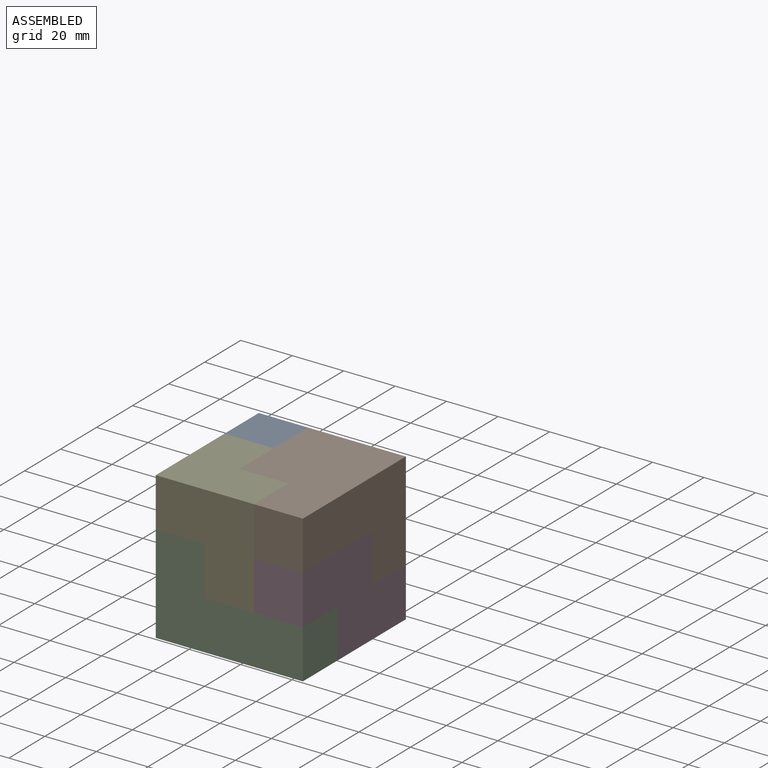
[diagram: assembled view]
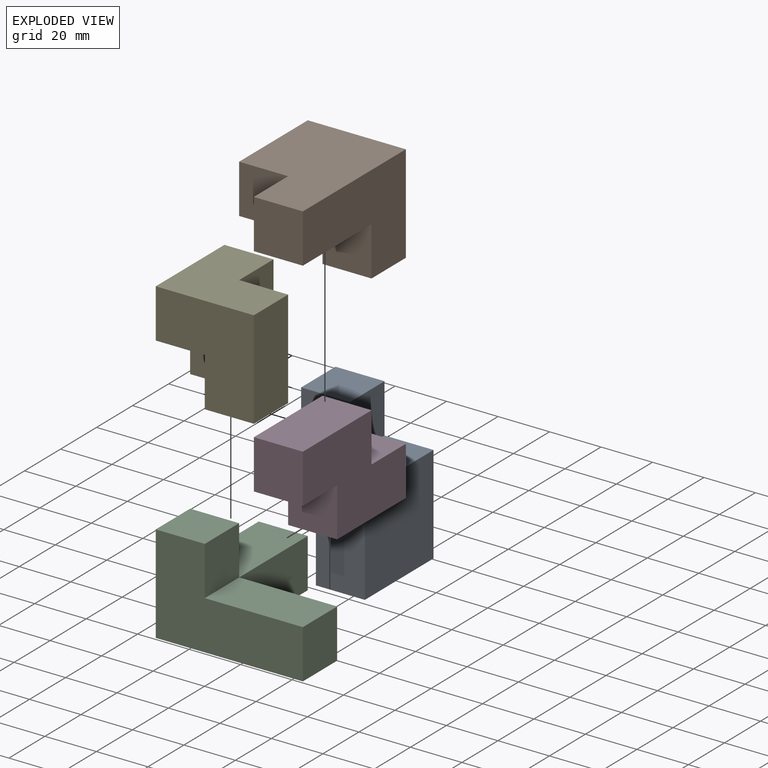
[diagram: exploded view]
GUIDED TOUR — MATED ASSEMBLY WITH SUBASSEMBLIES (Onshape document 07136e114ef27b51c66d2fa9, AutoMate assembly 07136e114ef27b51c66d2fa9_a3bc59fbf322028cf339dc3c_d794ad5f0589c1468adc88d8_default)

This assembly has 27 component occurrences arranged in 5 top-level units: 0 individual components plus 5 subassemblies (S0, S1, S2, S3, S4). The tour has two levels: first the top level, where each subassembly is treated as one rigid unit; then each subassembly is toured internally in its own section (nesting deeper than one subassembly level is flattened into its subassembly's section).

Components are labeled P0..P26 across the whole record; subassembly units are labeled S0..S4. A mate is a constraint between two units; its type names the relative motion it leaves free:
  FASTENED — locks the two components together rigidly (no relative motion).
Axis/direction vectors are unit vectors and 'through' points are millimeter coordinates, both in the assembly's world frame.

TOP-LEVEL MATES (between units; each subassembly's internal mates are listed in its own section)
  1. FASTENED "Fastened 1": S4 <-> S2, direction (0.000, 0.000, -1.000) through (-42.25, -92.13, -70.48) mm
  2. FASTENED "Fastened 3": S0 <-> S4, direction (0.000, -1.000, 0.000) through (-42.25, -63.56, -60.95) mm
  3. FASTENED "Fastened 2": S3 <-> S2, direction (0.000, 0.000, -1.000) through (-4.15, -92.13, -89.53) mm
  4. FASTENED "Fastened 4": S1 <-> S3, direction (0.000, 0.000, -1.000) through (-4.15, -54.03, -89.53) mm

TOP-LEVEL ASSEMBLY ORDER
  1. S2 — the base component [order verified]
  2. S4 [order verified]
  3. S1 [order verified]
  4. S0 [order verified]
  5. S3 [order verified]
Order-tag legend:
  [order verified] — this step's position reverses a verified removal order: the component was checked to insert without passing through the ones already placed.

Of the 27 component occurrences, 0 carry the full construction recipe — the FeatureScript program that regenerates the part's solid from scratch; the rest are supplied as boundary geometry only. Each toured unit is shown spotlighted twice — assembled, then exploded with a leader line back to its socket (green = recipe-attached component, orange = geometry-only, blue = subassembly unit; the rest desaturated gray).
NOTE — this tour is split across 3 documents so each fits a 32k-token context. This is document 1: the component sections continue in the remaining 2 documents, each repeating the header above.
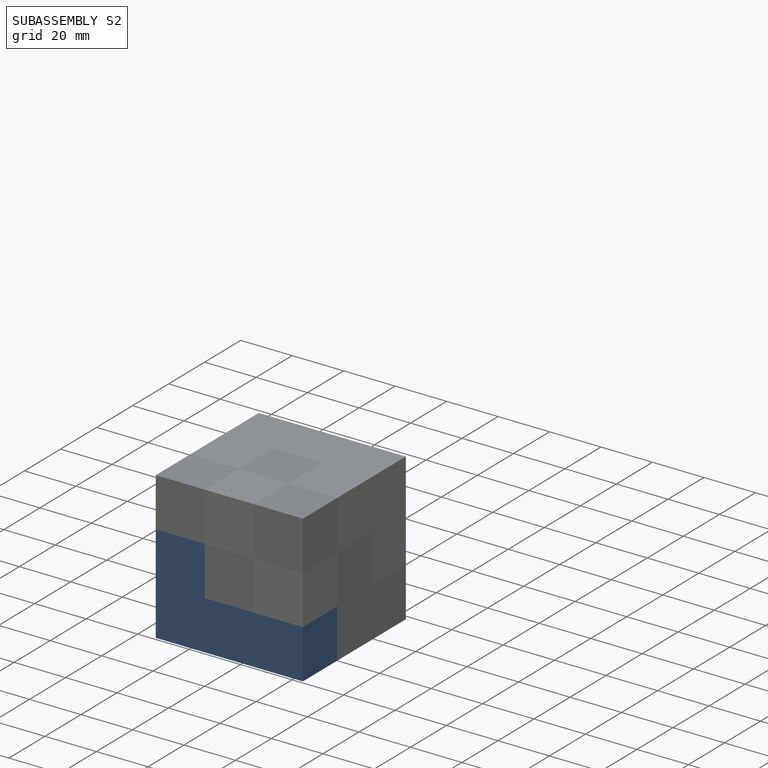
[diagram: subassembly S2 — assembled]
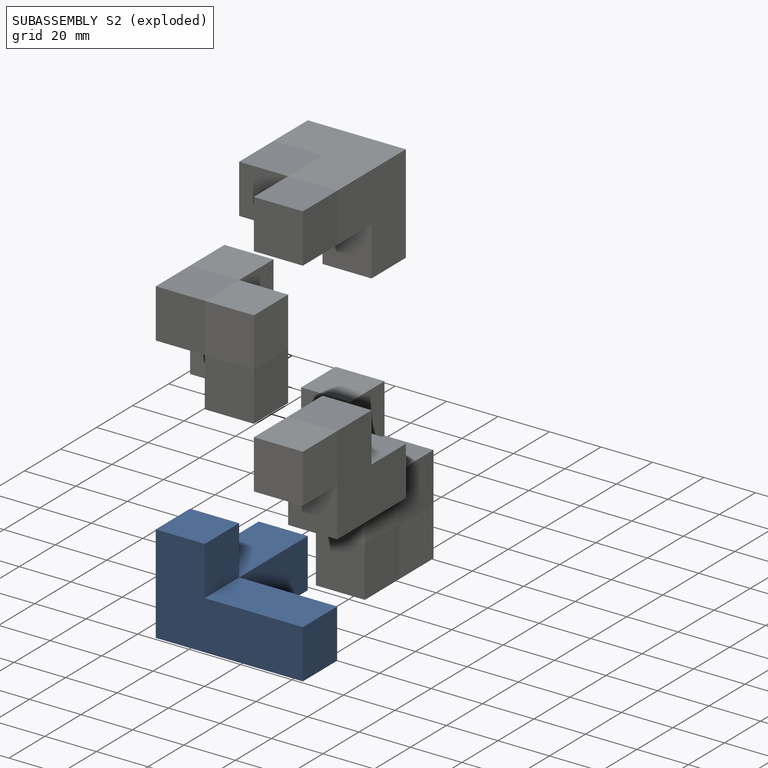
[diagram: subassembly S2 — exploded]
SUBASSEMBLY S2 — 6 components (P4, P6, P8, P11, P13, P17), of which 0 recipe-attached; toured below.
Held by: FASTENED mate "Fastened 1" to S4; FASTENED mate "Fastened 2" to S3.
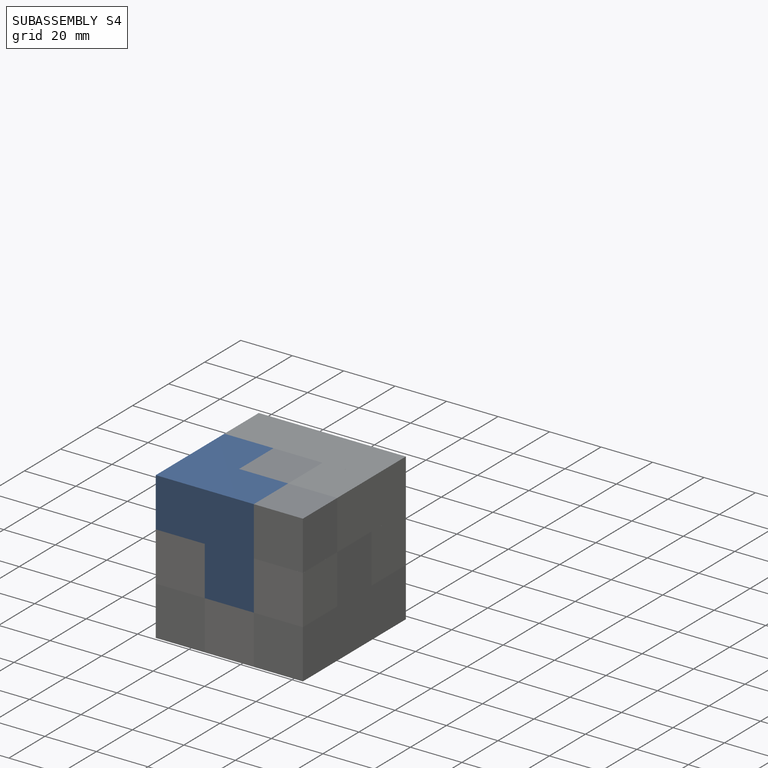
[diagram: subassembly S4 — assembled]
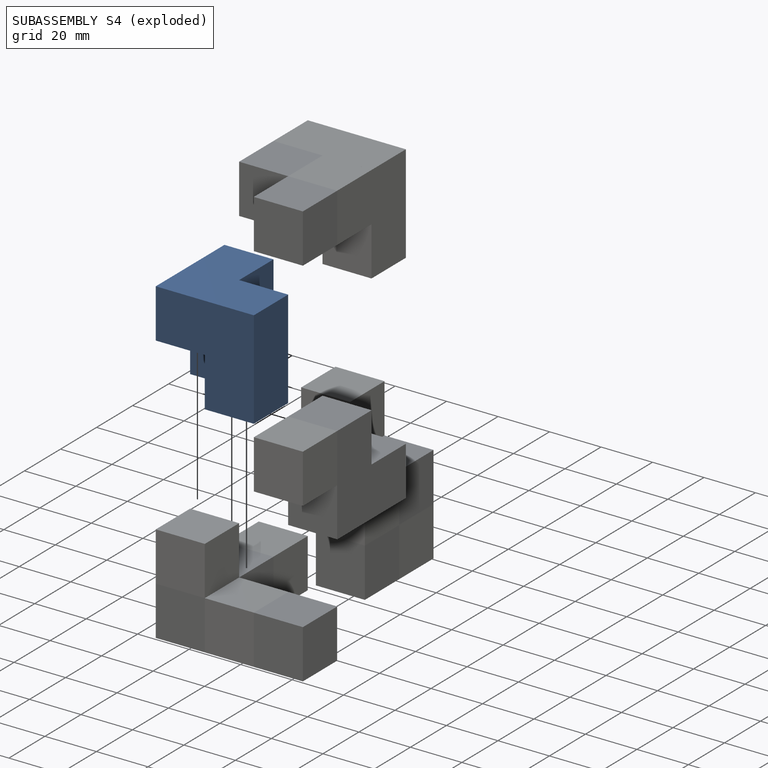
[diagram: subassembly S4 — exploded]
SUBASSEMBLY S4 — 5 components (P16, P19, P20, P21, P22), of which 0 recipe-attached; toured below.
Held by: FASTENED mate "Fastened 1" to S2; FASTENED mate "Fastened 3" to S0.
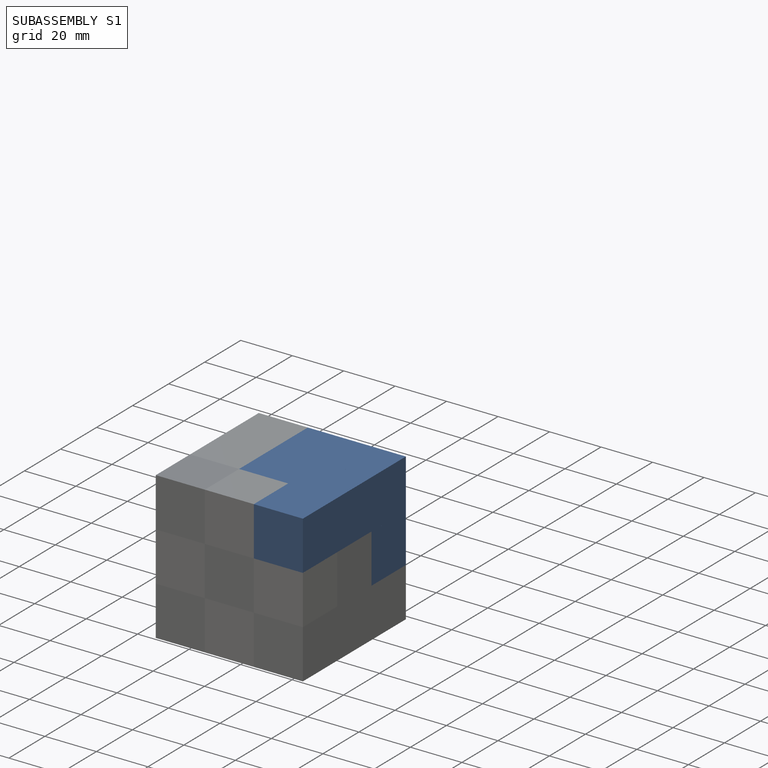
[diagram: subassembly S1 — assembled]
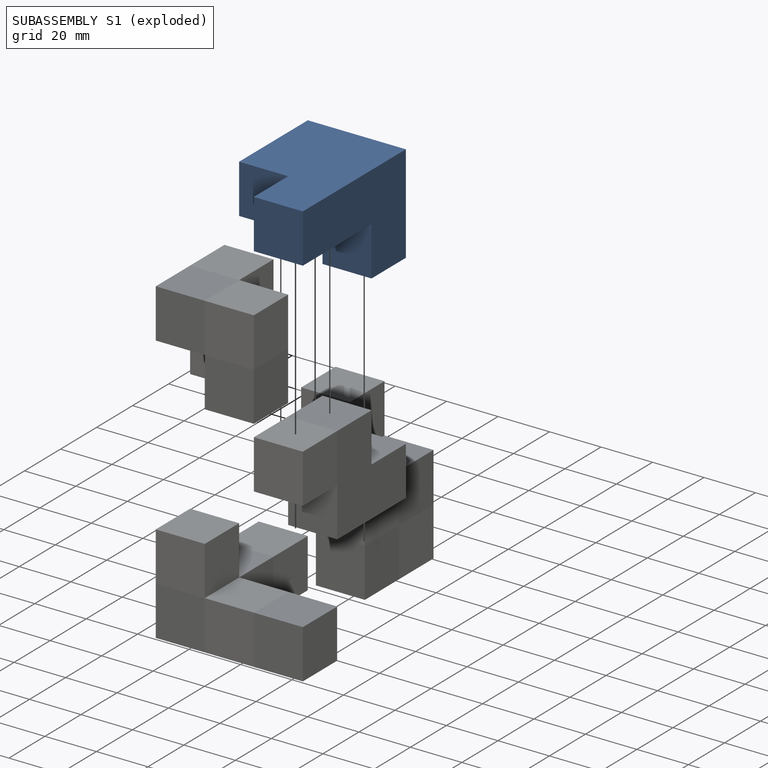
[diagram: subassembly S1 — exploded]
SUBASSEMBLY S1 — 6 components (P2, P3, P10, P15, P18, P26), of which 0 recipe-attached; toured below.
Held by: FASTENED mate "Fastened 4" to S3.
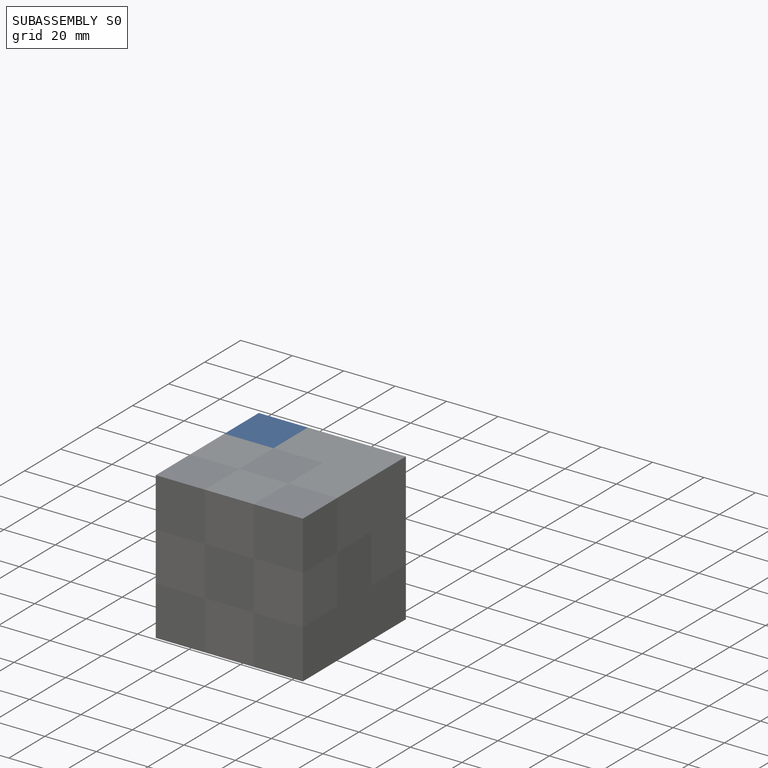
[diagram: subassembly S0 — assembled]
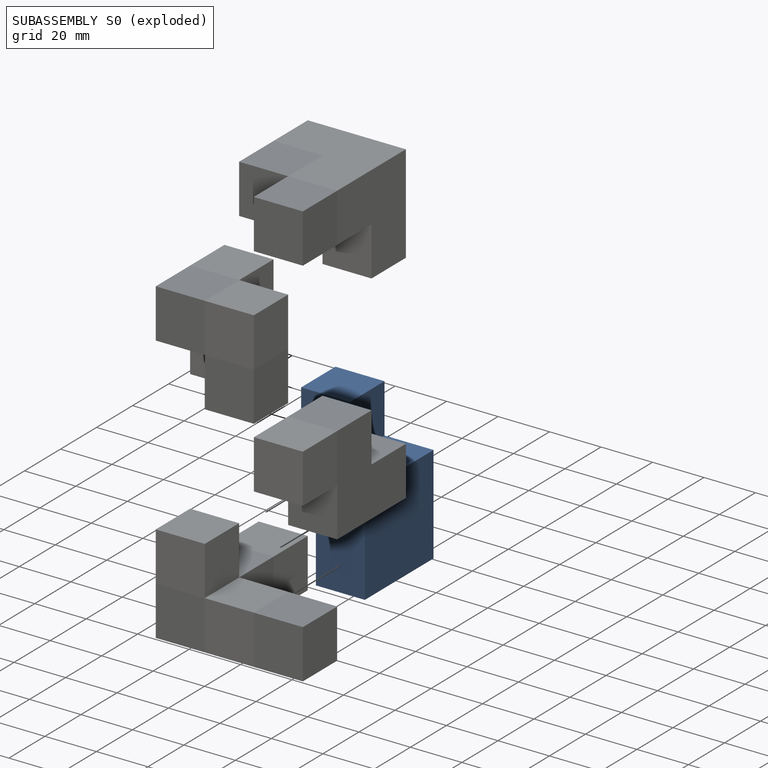
[diagram: subassembly S0 — exploded]
SUBASSEMBLY S0 — 6 components (P0, P1, P9, P12, P24, P25), of which 0 recipe-attached; toured below.
Held by: FASTENED mate "Fastened 3" to S4.
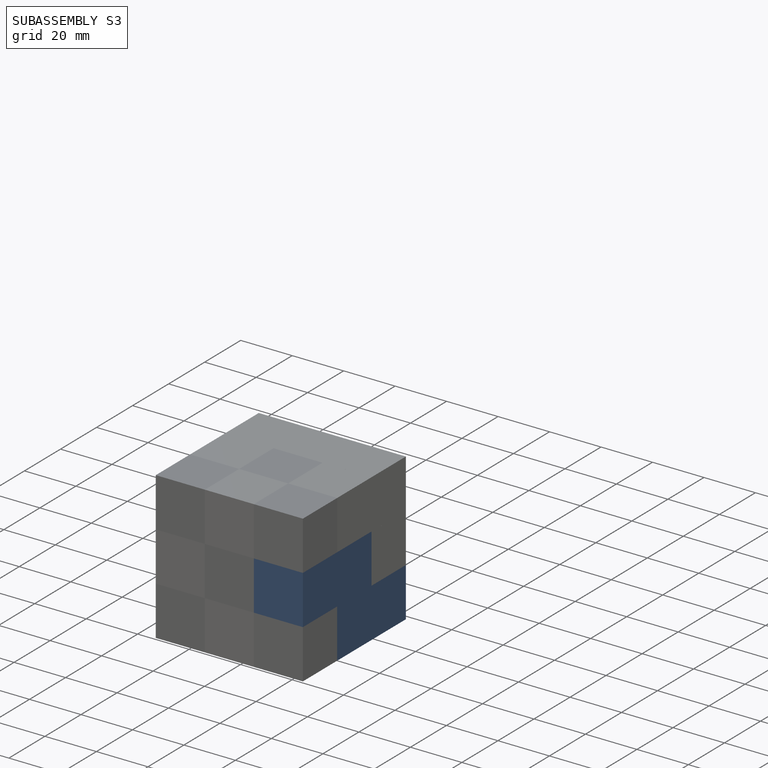
[diagram: subassembly S3 — assembled]
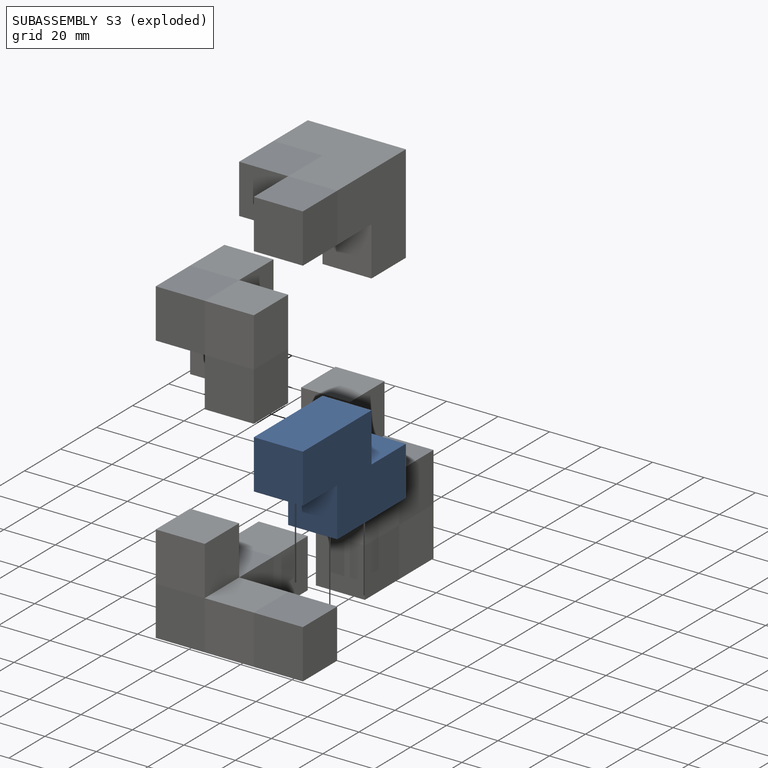
[diagram: subassembly S3 — exploded]
SUBASSEMBLY S3 — 4 components (P5, P7, P14, P23), of which 0 recipe-attached; toured below.
Held by: FASTENED mate "Fastened 2" to S2; FASTENED mate "Fastened 4" to S1.
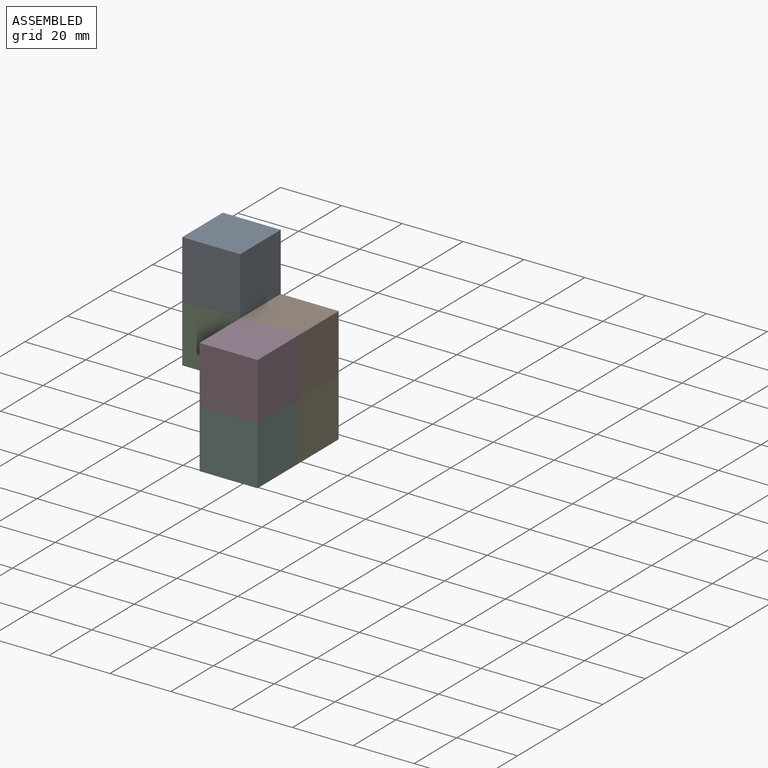
[diagram: subassembly S0 — assembled view]
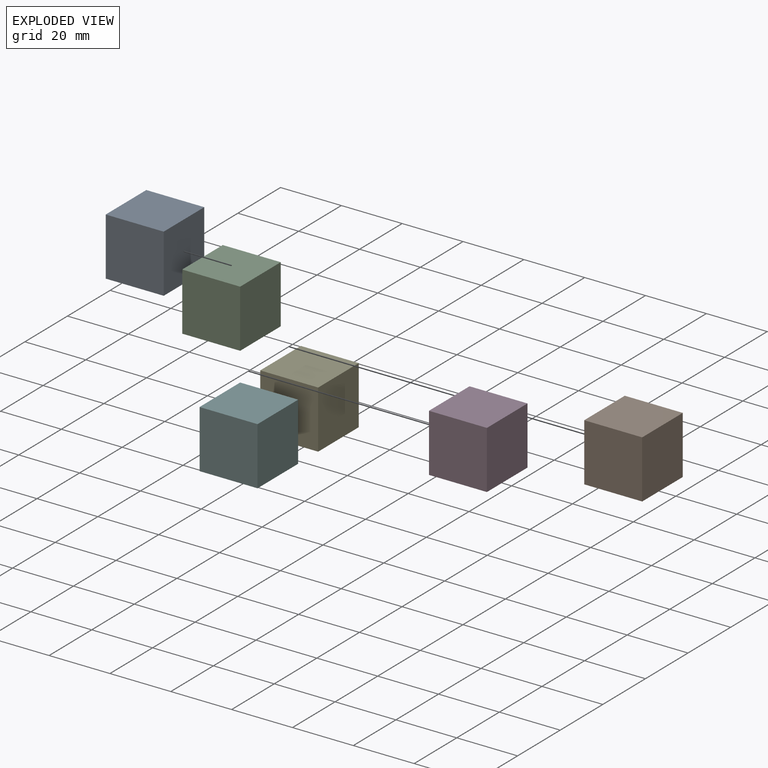
[diagram: subassembly S0 — exploded view]
SUBASSEMBLY S0 TOUR — 6 components, shown here in isolation at its own camera.
No internal mates are recorded for this subassembly; its components are held by their stored placements.

ASSEMBLY ORDER (within the subassembly)
  1. P25 — the base component [order verified]
  2. P24 [order verified]
  3. P12 [order verified]
  4. P1 [order verified]
  5. P9 [order verified]
  6. P0 [order verified]
Order-tag legend:
  [order verified] — this step's position reverses a verified removal order: the component was checked to insert without passing through the ones already placed.
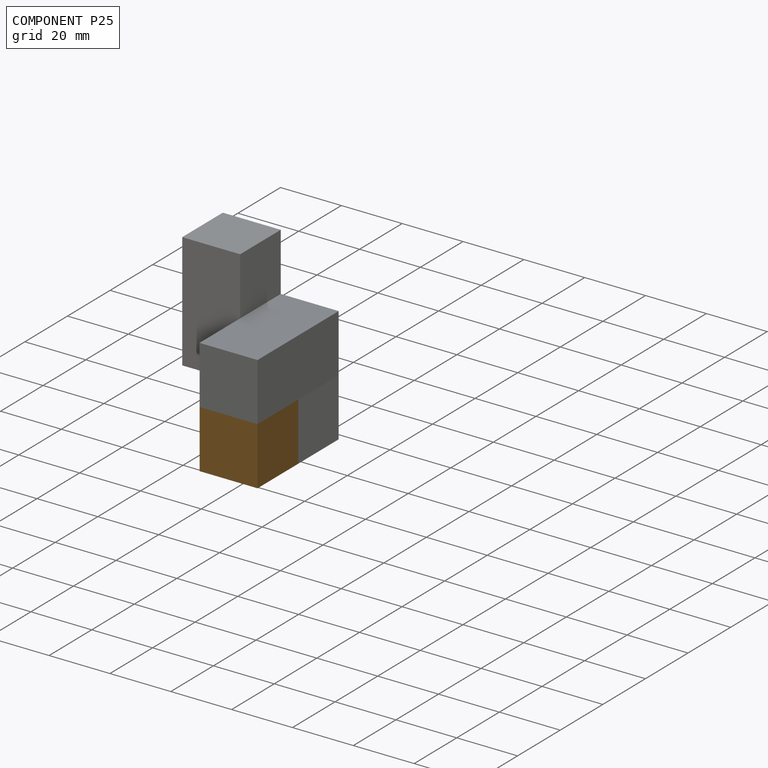
[diagram: component P25 — assembled]
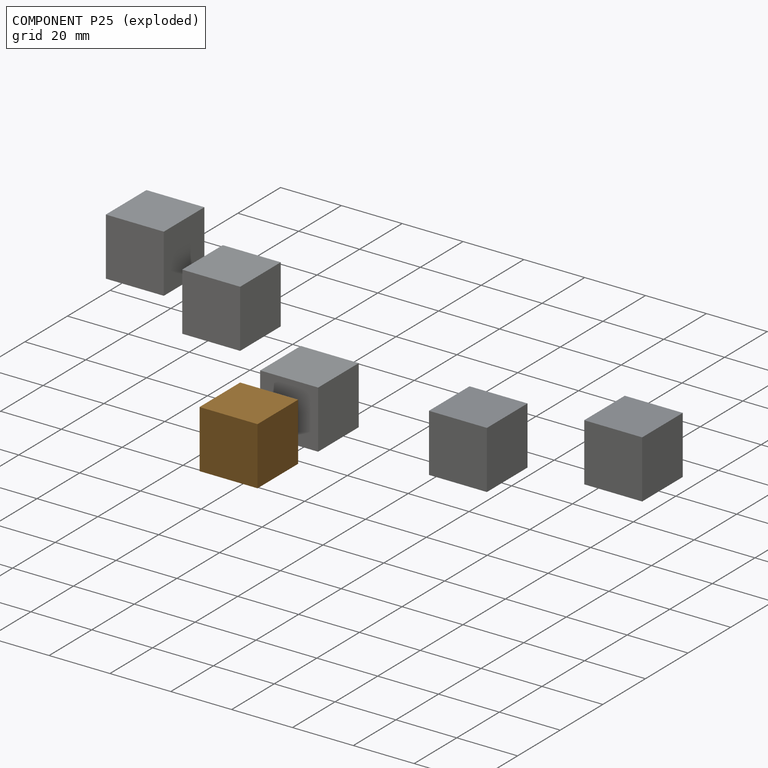
[diagram: component P25 — exploded]
COMPONENT P25 — geometry summary (no construction recipe available for this part):
  bounding box: 19.1 x 19.1 x 19.0 mm
  B-rep topology: 1 solid, 6 faces, 24 edges
  volume: 6913 mm^3 (100% of its bounding box)
  symmetry: 4-fold rotationally symmetric about the x axis; 4-fold rotationally symmetric about the y axis; 4-fold rotationally symmetric about the z axis; mirror-symmetric across its x mid-plane, y mid-plane, z mid-plane
Held by: no mates (free).
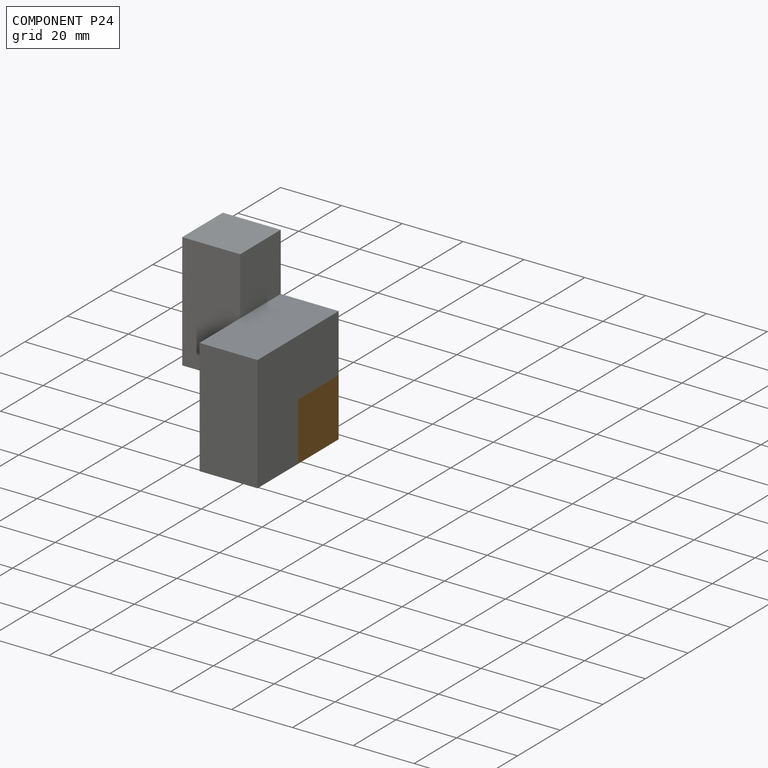
[diagram: component P24 — assembled]
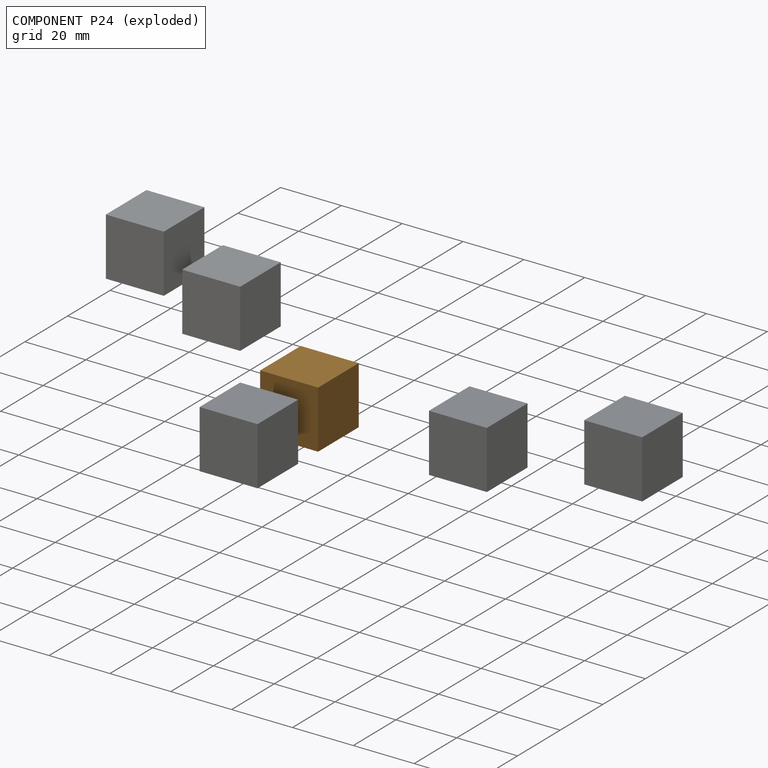
[diagram: component P24 — exploded]
COMPONENT P24 — geometry summary (no construction recipe available for this part):
  bounding box: 19.1 x 19.1 x 19.0 mm
  B-rep topology: 1 solid, 6 faces, 24 edges
  volume: 6913 mm^3 (100% of its bounding box)
  symmetry: 4-fold rotationally symmetric about the x axis; 4-fold rotationally symmetric about the y axis; 4-fold rotationally symmetric about the z axis; mirror-symmetric across its x mid-plane, y mid-plane, z mid-plane
Held by: no mates (free).
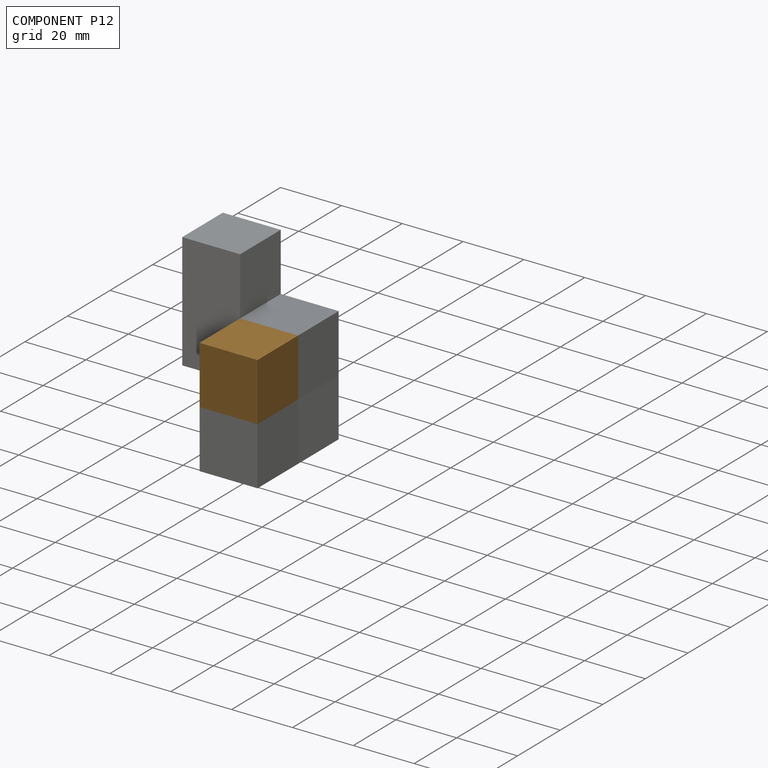
[diagram: component P12 — assembled]
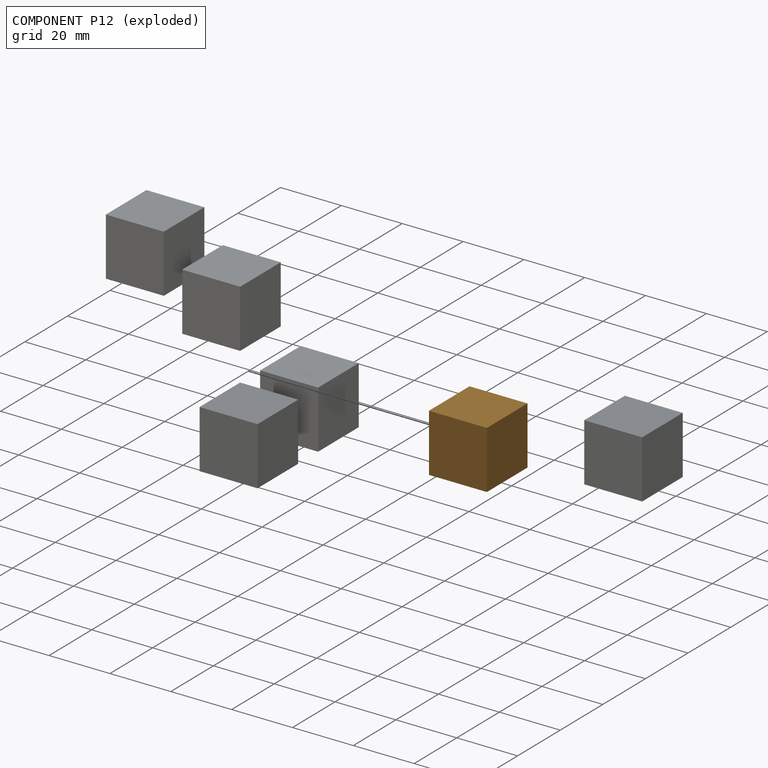
[diagram: component P12 — exploded]
COMPONENT P12 — geometry summary (no construction recipe available for this part):
  bounding box: 19.1 x 19.1 x 19.0 mm
  B-rep topology: 1 solid, 6 faces, 24 edges
  volume: 6913 mm^3 (100% of its bounding box)
  symmetry: 4-fold rotationally symmetric about the x axis; 4-fold rotationally symmetric about the y axis; 4-fold rotationally symmetric about the z axis; mirror-symmetric across its x mid-plane, y mid-plane, z mid-plane
Held by: no mates (free).
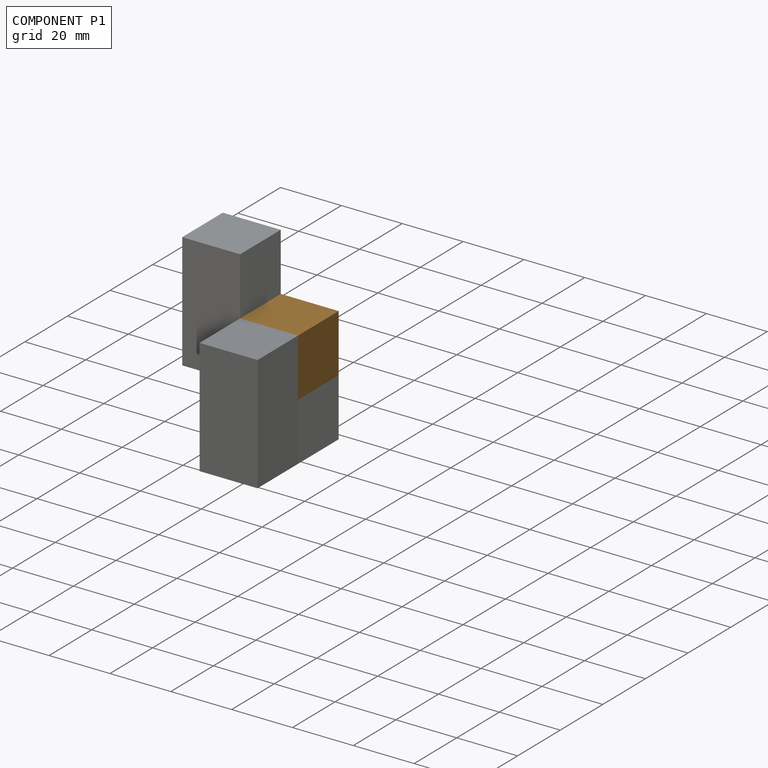
[diagram: component P1 — assembled]
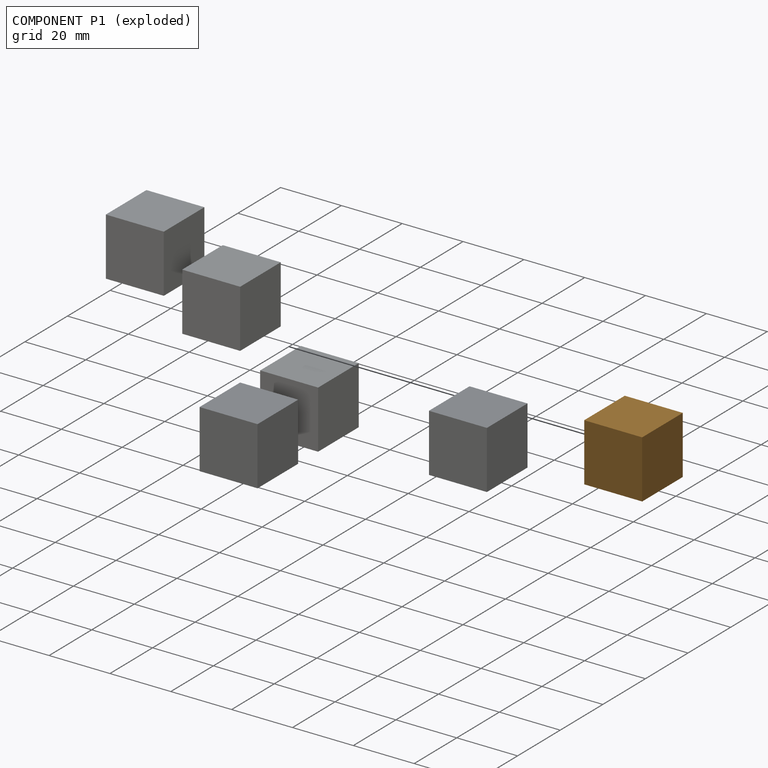
[diagram: component P1 — exploded]
COMPONENT P1 — geometry summary (no construction recipe available for this part):
  bounding box: 19.1 x 19.1 x 19.0 mm
  B-rep topology: 1 solid, 6 faces, 24 edges
  volume: 6913 mm^3 (100% of its bounding box)
  symmetry: 4-fold rotationally symmetric about the x axis; 4-fold rotationally symmetric about the y axis; 4-fold rotationally symmetric about the z axis; mirror-symmetric across its x mid-plane, y mid-plane, z mid-plane
Held by: no mates (free).
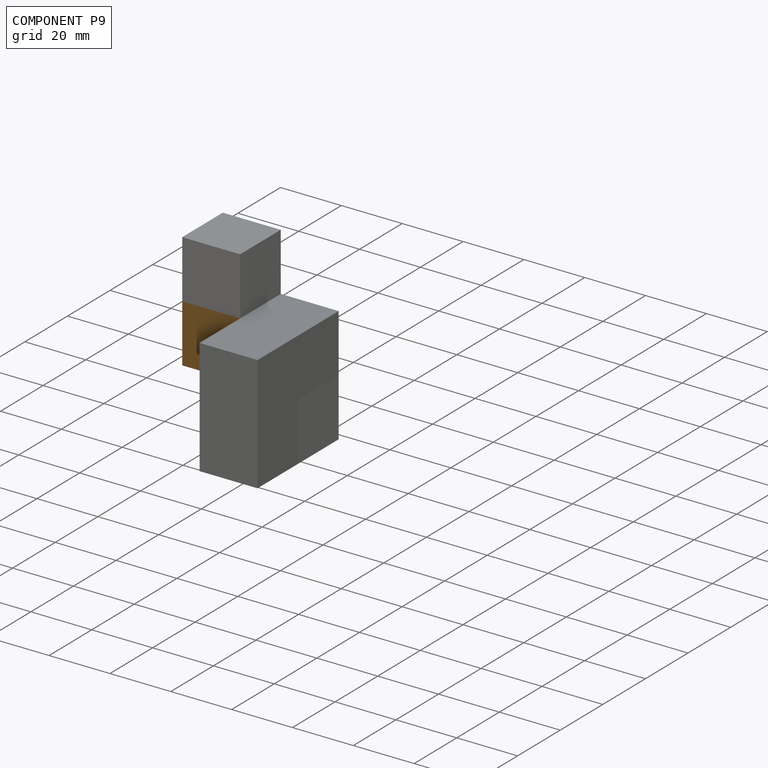
[diagram: component P9 — assembled]
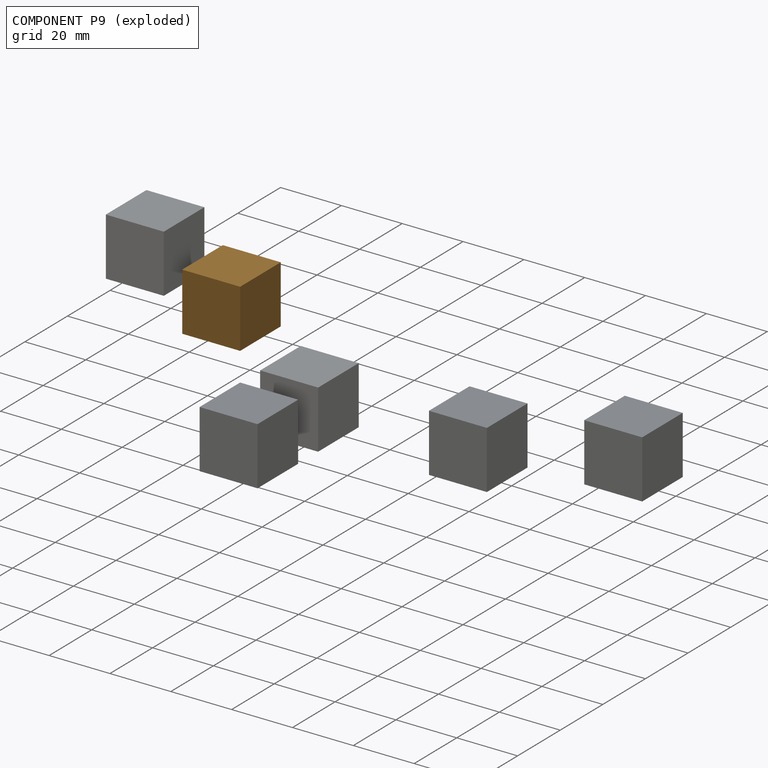
[diagram: component P9 — exploded]
COMPONENT P9 — geometry summary (no construction recipe available for this part):
  bounding box: 19.1 x 19.1 x 19.0 mm
  B-rep topology: 1 solid, 6 faces, 24 edges
  volume: 6913 mm^3 (100% of its bounding box)
  symmetry: 4-fold rotationally symmetric about the x axis; 4-fold rotationally symmetric about the y axis; 4-fold rotationally symmetric about the z axis; mirror-symmetric across its x mid-plane, y mid-plane, z mid-plane
Held by: no mates (free).
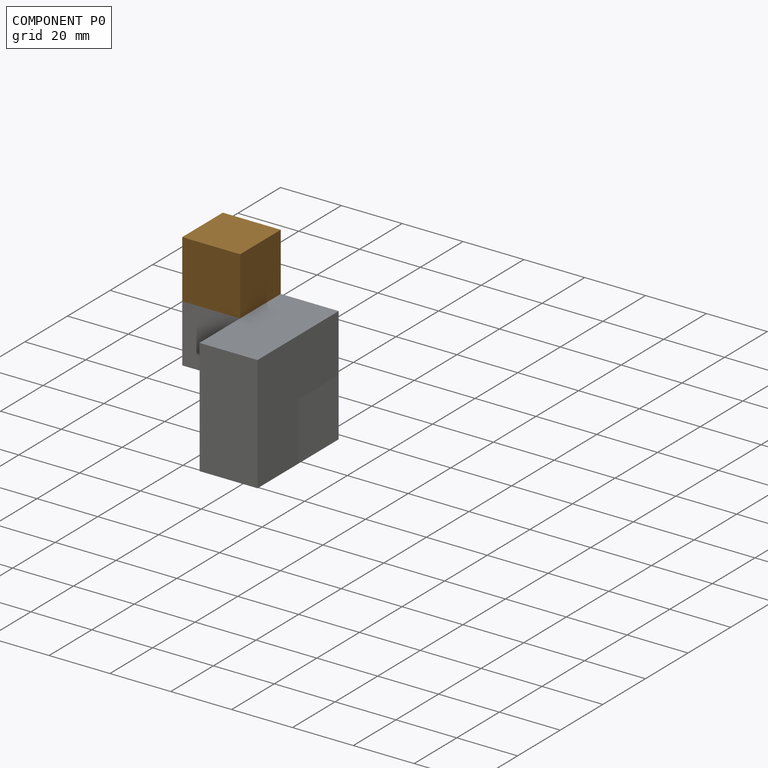
[diagram: component P0 — assembled]
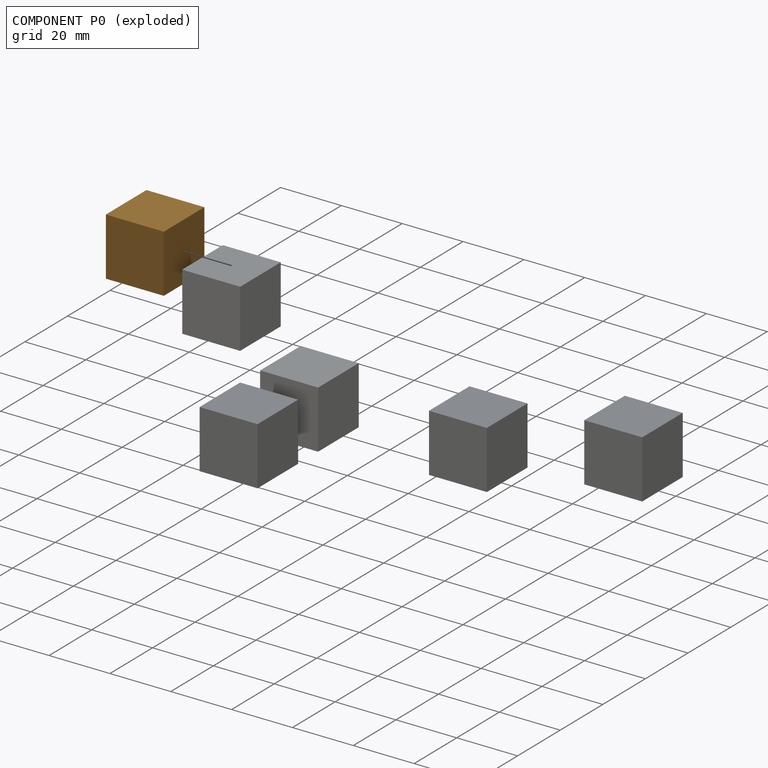
[diagram: component P0 — exploded]
COMPONENT P0 — geometry summary (no construction recipe available for this part):
  bounding box: 19.1 x 19.1 x 19.0 mm
  B-rep topology: 1 solid, 6 faces, 24 edges
  volume: 6913 mm^3 (100% of its bounding box)
  symmetry: 4-fold rotationally symmetric about the x axis; 4-fold rotationally symmetric about the y axis; 4-fold rotationally symmetric about the z axis; mirror-symmetric across its x mid-plane, y mid-plane, z mid-plane
Held by: no mates (free).
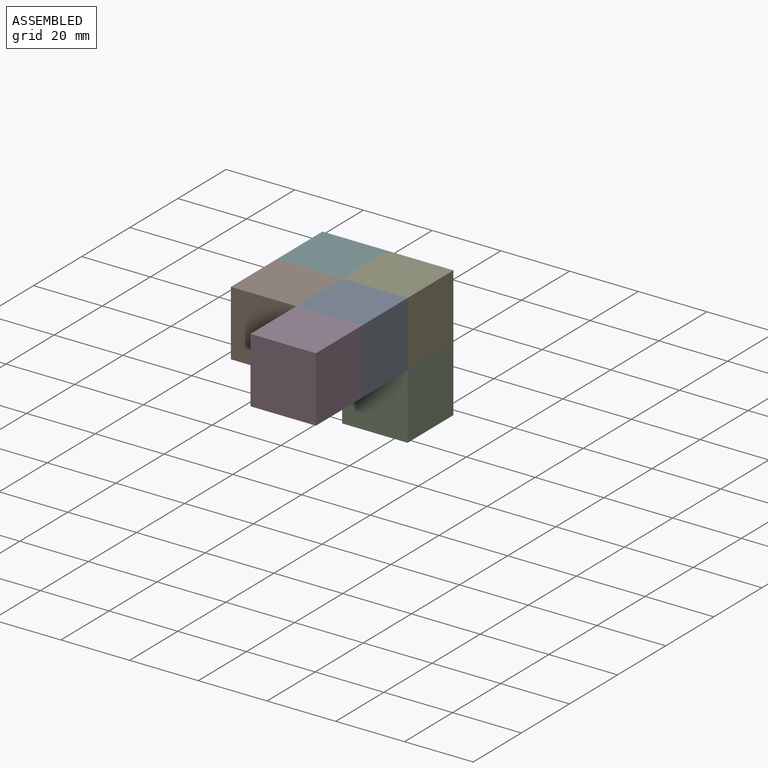
[diagram: subassembly S1 — assembled view]
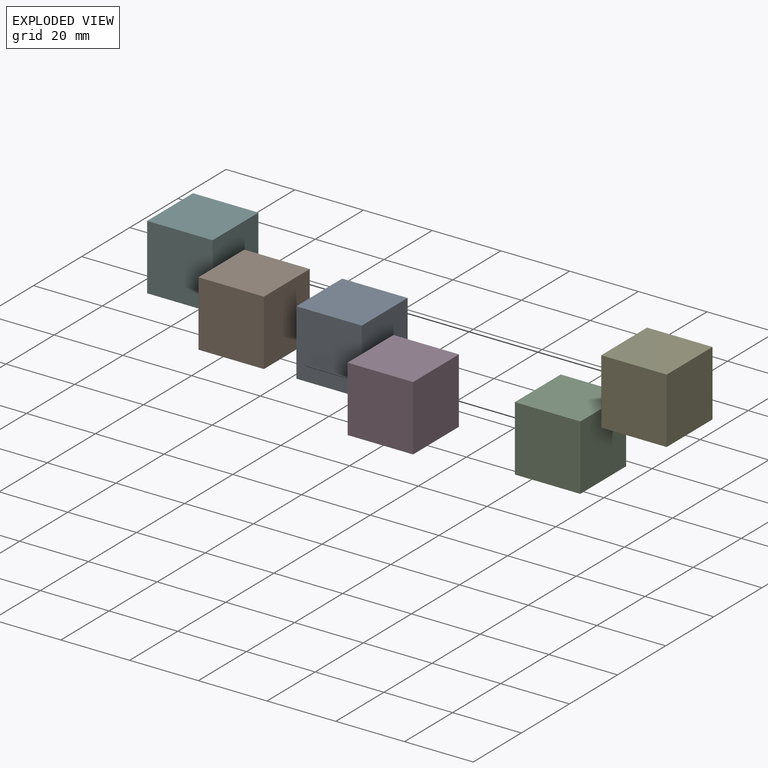
[diagram: subassembly S1 — exploded view]
SUBASSEMBLY S1 TOUR — 6 components, shown here in isolation at its own camera.
No internal mates are recorded for this subassembly; its components are held by their stored placements.

ASSEMBLY ORDER (within the subassembly)
  1. P2 — the base component [order heuristic]
  2. P3 — core [order heuristic]
  3. P18 — core [order heuristic]
  4. P26 — core [order heuristic]
  5. P15 [order verified]
  6. P10 [order verified]
Order-tag legend:
  [order verified] — this step's position reverses a verified removal order: the component was checked to insert without passing through the ones already placed.
  [order heuristic] — the first 4 components form the assembly's core: parts whose collision-free extraction could not be verified, listed in mate-graph order.
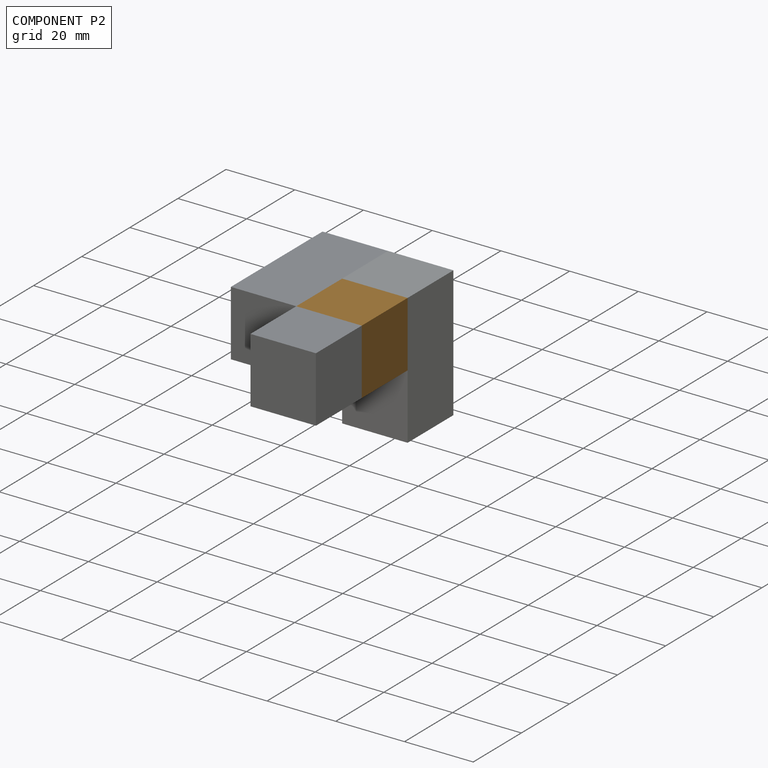
[diagram: component P2 — assembled]
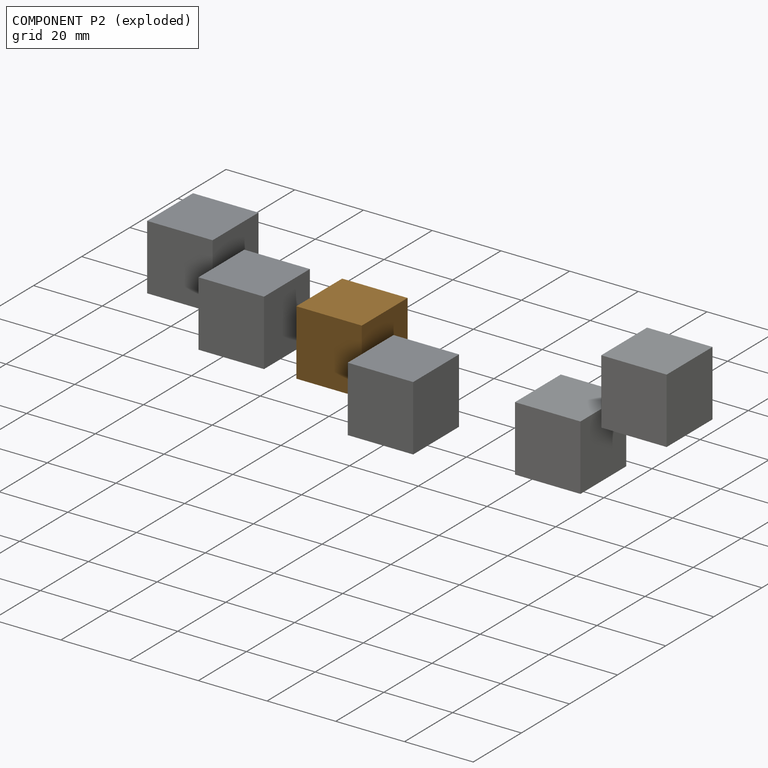
[diagram: component P2 — exploded]
COMPONENT P2 — geometry summary (no construction recipe available for this part):
  bounding box: 19.1 x 19.1 x 19.0 mm
  B-rep topology: 1 solid, 6 faces, 24 edges
  volume: 6913 mm^3 (100% of its bounding box)
  symmetry: 4-fold rotationally symmetric about the x axis; 4-fold rotationally symmetric about the y axis; 4-fold rotationally symmetric about the z axis; mirror-symmetric across its x mid-plane, y mid-plane, z mid-plane
Held by: no mates (free).
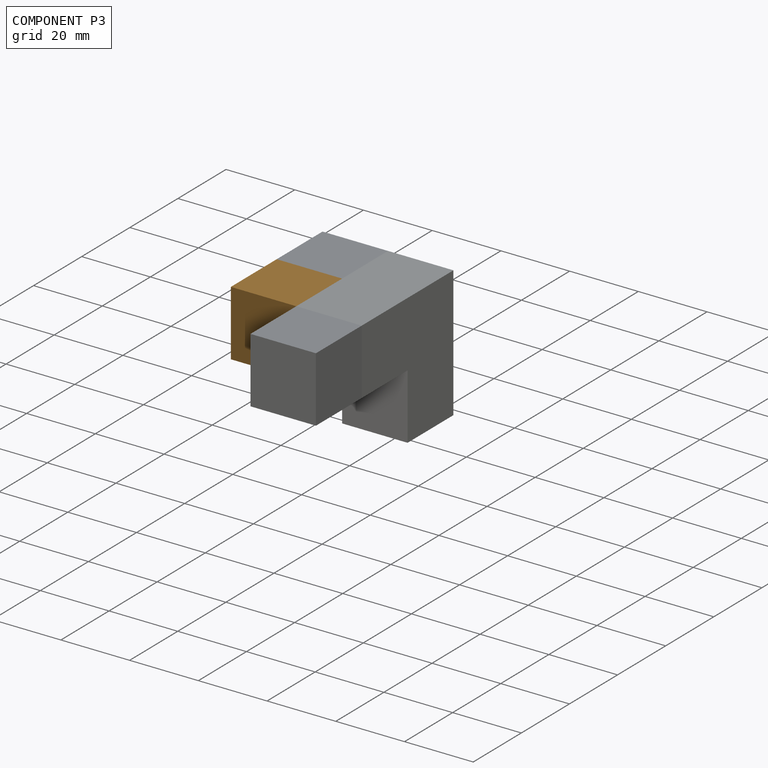
[diagram: component P3 — assembled]
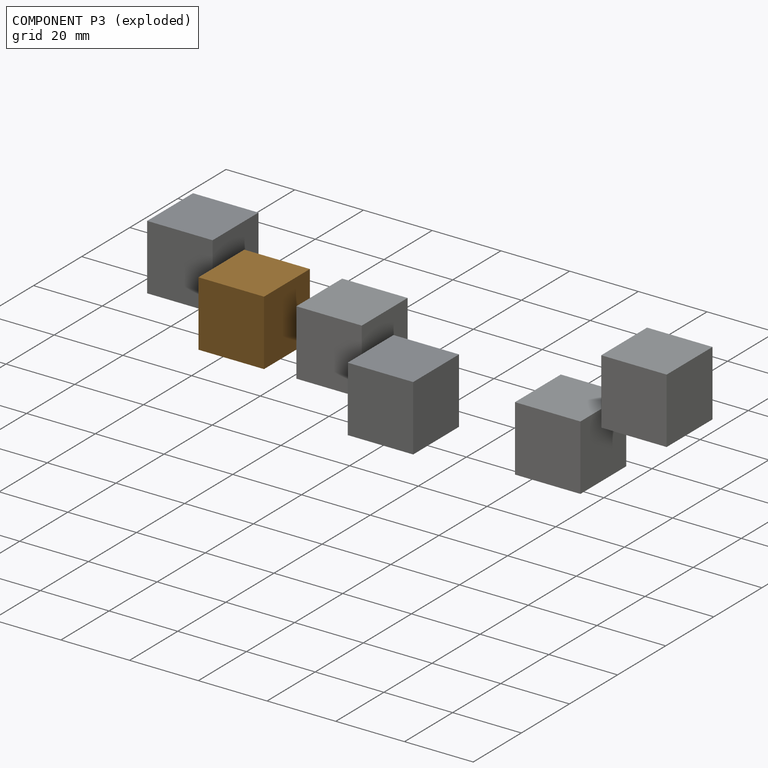
[diagram: component P3 — exploded]
COMPONENT P3 — geometry summary (no construction recipe available for this part):
  bounding box: 19.1 x 19.1 x 19.0 mm
  B-rep topology: 1 solid, 6 faces, 24 edges
  volume: 6913 mm^3 (100% of its bounding box)
  symmetry: 4-fold rotationally symmetric about the x axis; 4-fold rotationally symmetric about the y axis; 4-fold rotationally symmetric about the z axis; mirror-symmetric across its x mid-plane, y mid-plane, z mid-plane
Held by: no mates (free).
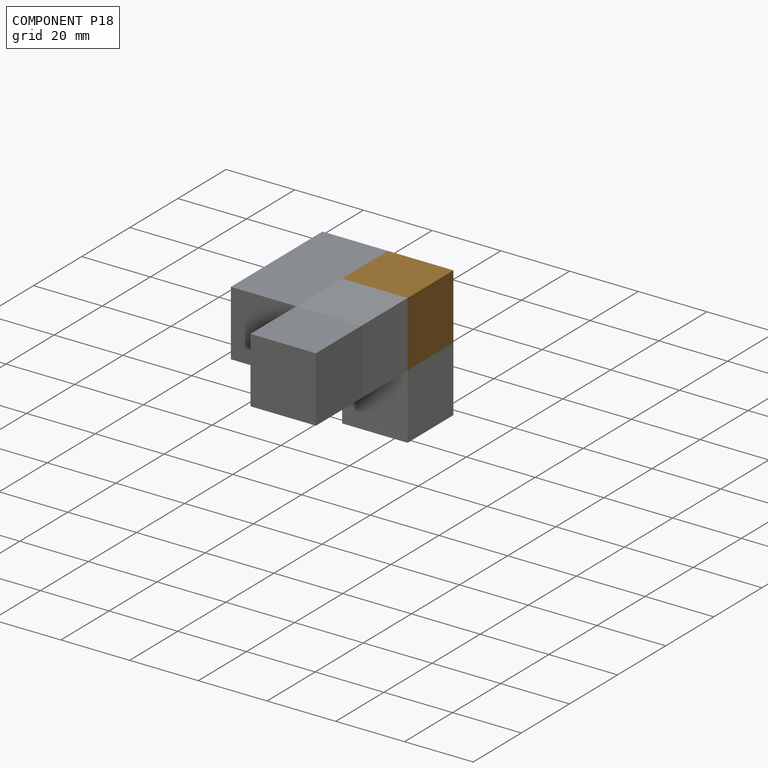
[diagram: component P18 — assembled]
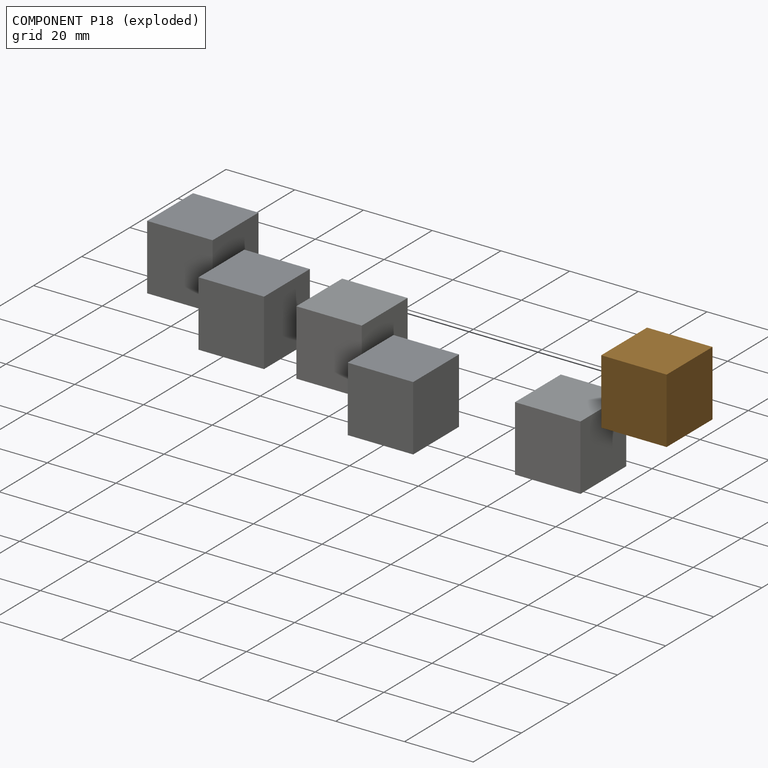
[diagram: component P18 — exploded]
COMPONENT P18 — geometry summary (no construction recipe available for this part):
  bounding box: 19.1 x 19.1 x 19.0 mm
  B-rep topology: 1 solid, 6 faces, 24 edges
  volume: 6913 mm^3 (100% of its bounding box)
  symmetry: 4-fold rotationally symmetric about the x axis; 4-fold rotationally symmetric about the y axis; 4-fold rotationally symmetric about the z axis; mirror-symmetric across its x mid-plane, y mid-plane, z mid-plane
Held by: no mates (free).
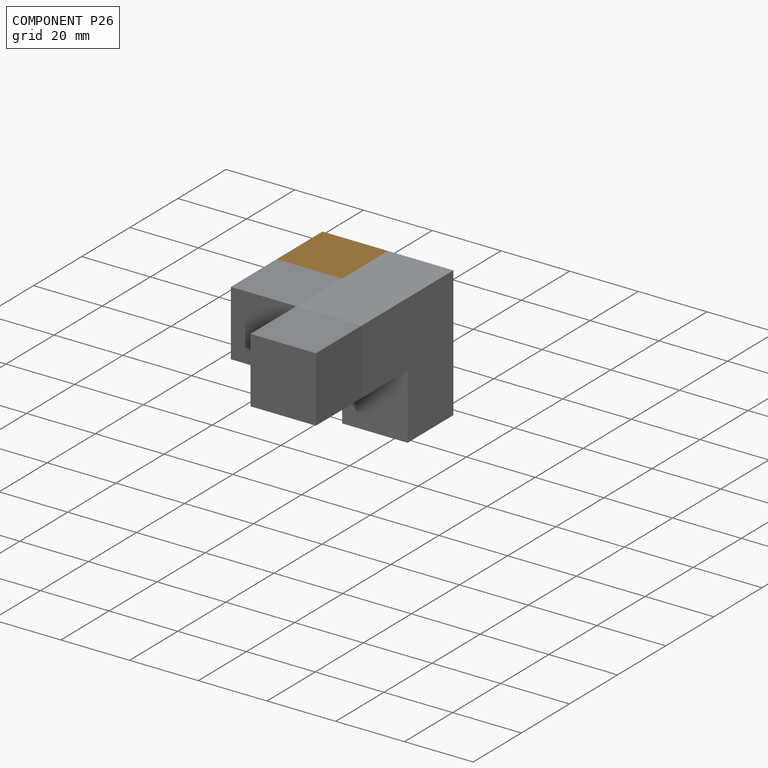
[diagram: component P26 — assembled]
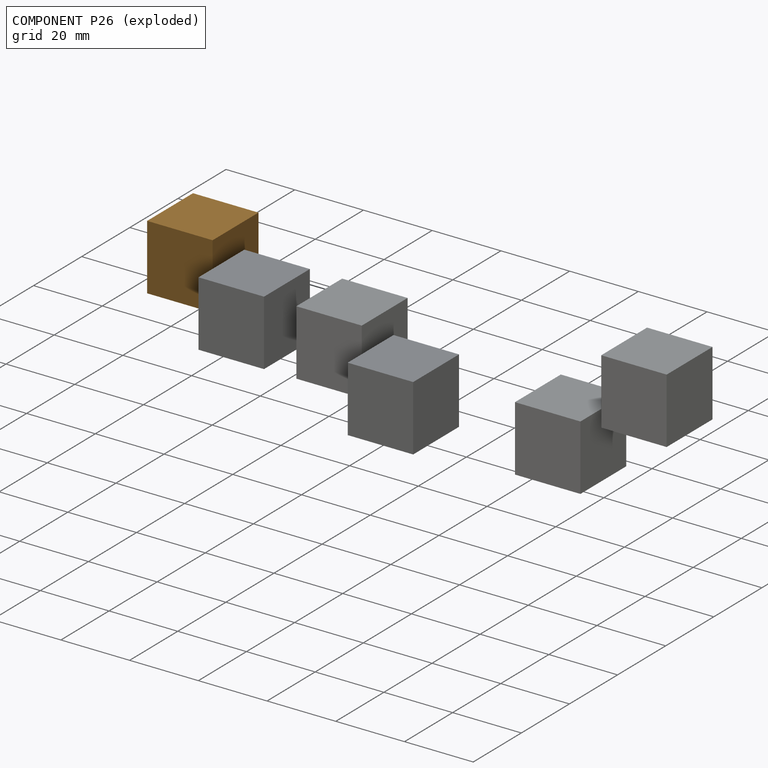
[diagram: component P26 — exploded]
COMPONENT P26 — geometry summary (no construction recipe available for this part):
  bounding box: 19.1 x 19.1 x 19.0 mm
  B-rep topology: 1 solid, 6 faces, 24 edges
  volume: 6913 mm^3 (100% of its bounding box)
  symmetry: 4-fold rotationally symmetric about the x axis; 4-fold rotationally symmetric about the y axis; 4-fold rotationally symmetric about the z axis; mirror-symmetric across its x mid-plane, y mid-plane, z mid-plane
Held by: no mates (free).
